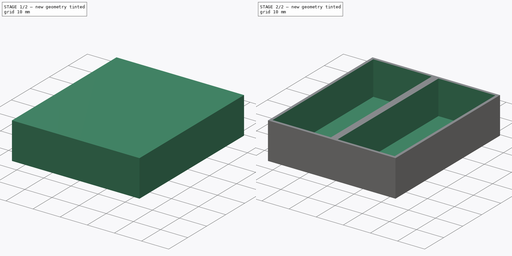
[diagram: build sequence overview — one tinted view per stage of 2, left to right]
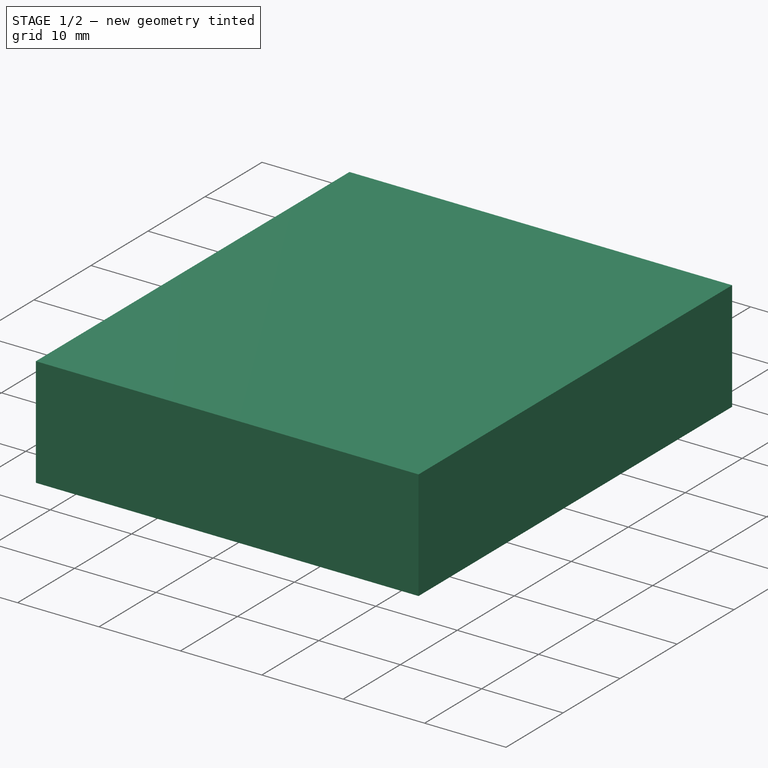
[diagram: stage 1 of 2 — iso view after this stage's code; geometry added in this stage tinted green]
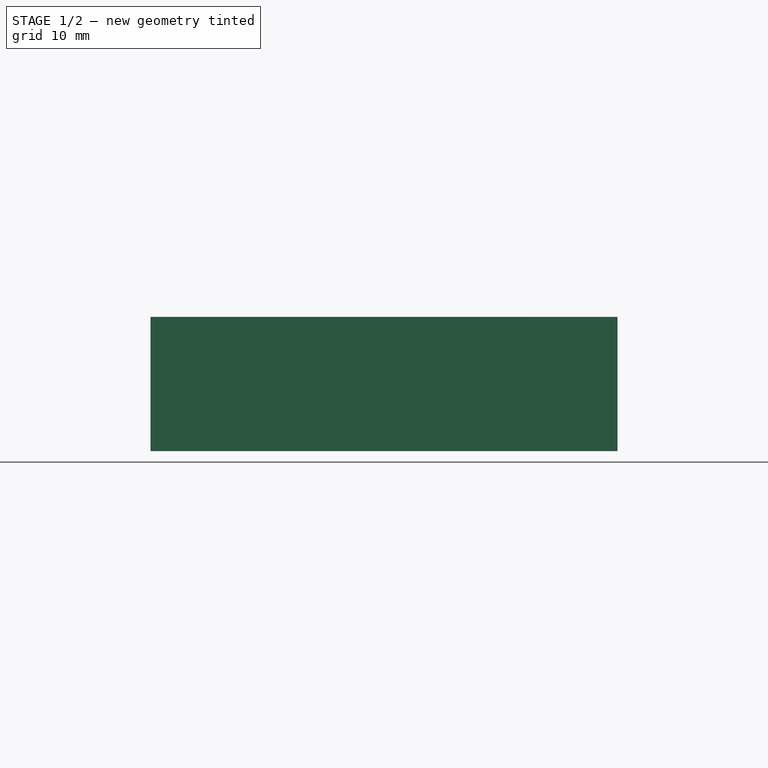
[diagram: stage 1 of 2 — front view after this stage's code; geometry added in this stage tinted green]
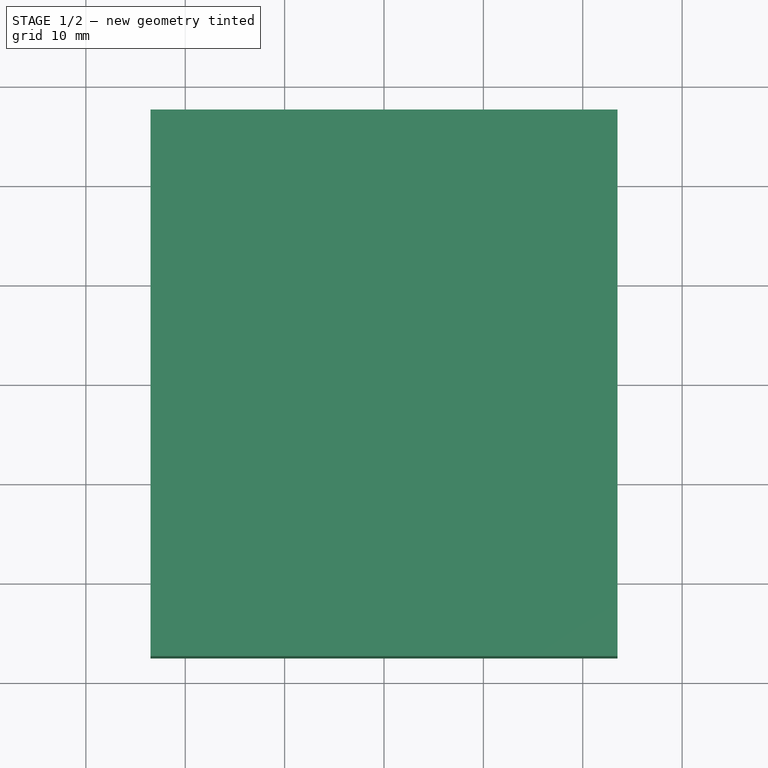
[diagram: stage 1 of 2 — top view after this stage's code; geometry added in this stage tinted green]
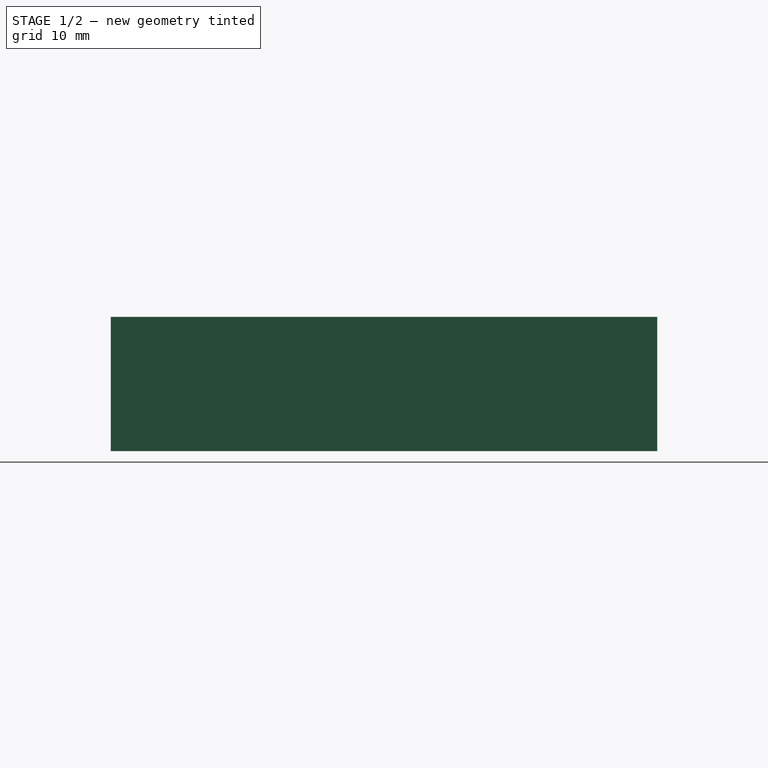
[diagram: stage 1 of 2 — right view after this stage's code; geometry added in this stage tinted green]
FCSTD DOCUMENT  (FreeCAD 0.21R33694 (Git))
Label: l298d
License: All rights reserved
LicenseURL: https://en.wikipedia.org/wiki/All_rights_reserved
objects: Sketcher::SketchObject×2, PartDesign::Pad×1, PartDesign::Pocket×1, PartDesign::Body×1
note: 7 computed .brp shape members not serialized (recipe doc carries the construction recipe); baked Part::Feature solids carry a one-line shape summary decoded from their .brp

FEATURE [Sketcher::SketchObject] Sketch
  FullyConstrained = true
  MapMode = 5
  Support = -> [XY_Plane]
  sketch-geometry (4):
    g0: LineSegment StartX=-23.5 StartY=27.5 StartZ=0 EndX=23.5 EndY=27.5 EndZ=0
    g1: LineSegment StartX=23.5 StartY=27.5 StartZ=0 EndX=23.5 EndY=-27.5 EndZ=0
    g2: LineSegment StartX=23.5 StartY=-27.5 StartZ=0 EndX=-23.5 EndY=-27.5 EndZ=0
    g3: LineSegment StartX=-23.5 StartY=-27.5 StartZ=0 EndX=-23.5 EndY=27.5 EndZ=0
  constraints (11):
    c: Coincident(g0,g1)
    c: Coincident(g1,g2)
    c: Coincident(g2,g3)
    c: Coincident(g3,g0)
    c: Horizontal(g0)
    c: Horizontal(g2)
    c: Vertical(g1)
    c: Vertical(g3)
    c: DistanceX(g0,g0) = 47
    c: DistanceY(g3,g3) = 55
    c: Symmetric(g0,g1,g-1)
FEATURE [PartDesign::Pad] Pad
  Direction = (0,0,1)
  Length = 13.5
  Length2 = 10
  Profile = -> Sketch
  ReferenceAxis = -> Sketch [N_Axis]
  Type = 0
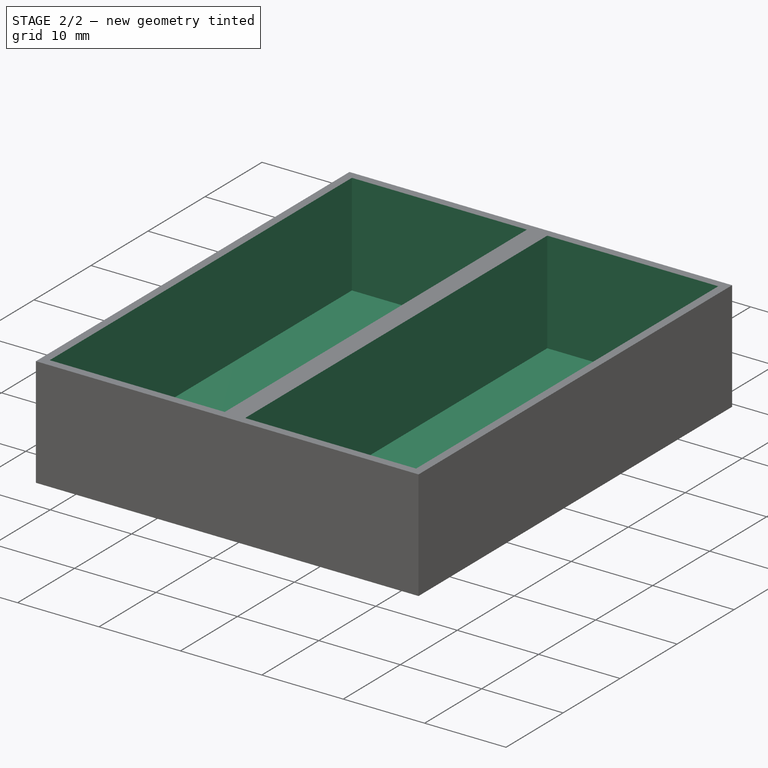
[diagram: stage 2 of 2 — iso view after this stage's code; geometry added in this stage tinted green]
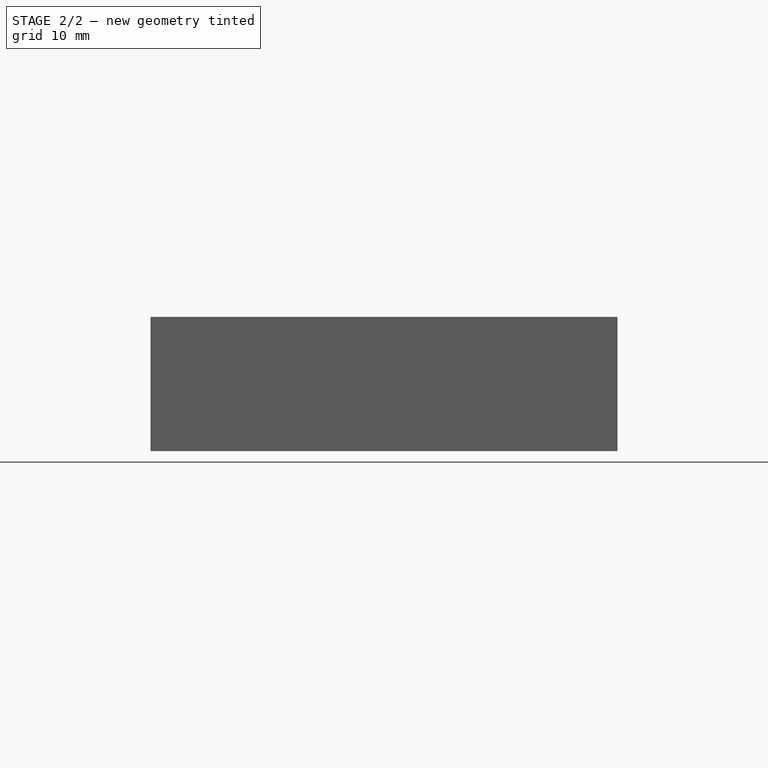
[diagram: stage 2 of 2 — front view after this stage's code; geometry added in this stage tinted green]
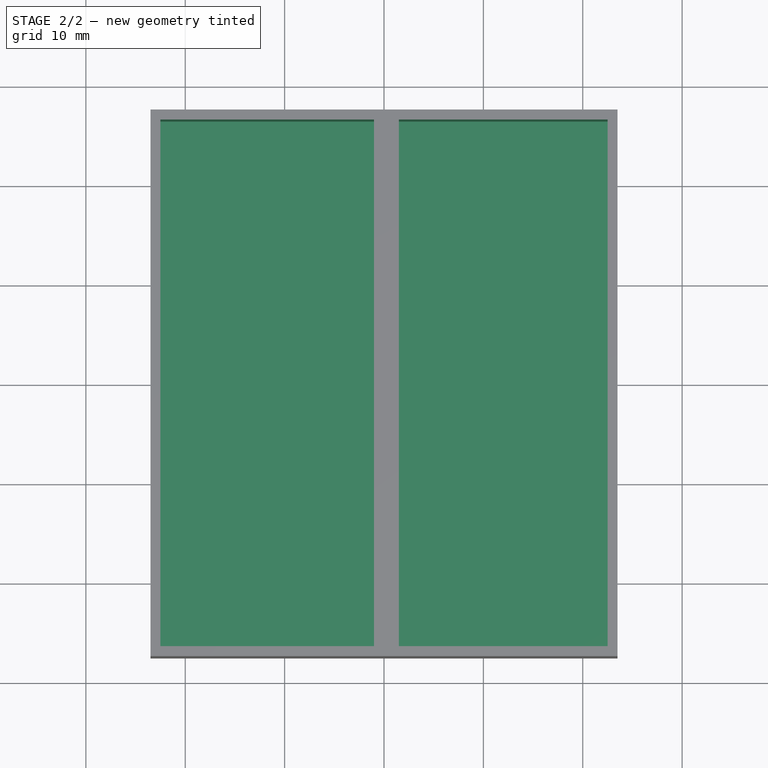
[diagram: stage 2 of 2 — top view after this stage's code; geometry added in this stage tinted green]
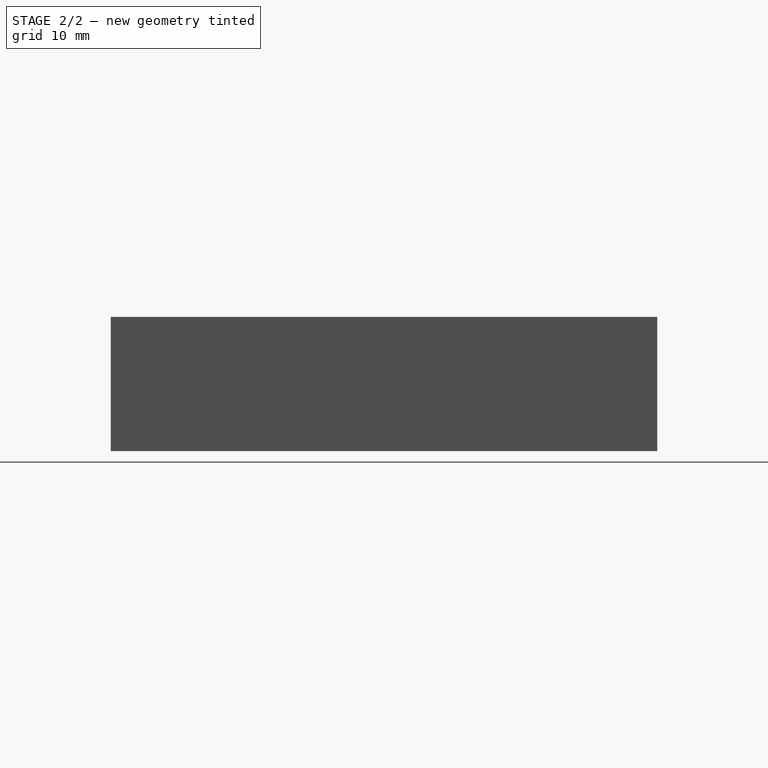
[diagram: stage 2 of 2 — right view after this stage's code; geometry added in this stage tinted green]
FEATURE [Sketcher::SketchObject] Sketch001
  ExternalGeometry = -> [Pad]
  FullyConstrained = true
  MapMode = 5
  Placement = pos=(0,0,13.5) rot=(0,0,1;0rad)
  Support = -> [Pad]
  sketch-geometry (8):
    g0: LineSegment StartX=-22.5 StartY=26.5 StartZ=0 EndX=-1 EndY=26.5 EndZ=0
    g1: LineSegment StartX=-1 StartY=26.5 StartZ=0 EndX=-1 EndY=-26.5 EndZ=0
    g2: LineSegment StartX=-1 StartY=-26.5 StartZ=0 EndX=-22.5 EndY=-26.5 EndZ=0
    g3: LineSegment StartX=-22.5 StartY=-26.5 StartZ=0 EndX=-22.5 EndY=26.5 EndZ=0
    g4: LineSegment StartX=1.5 StartY=26.5 StartZ=0 EndX=22.5 EndY=26.5 EndZ=0
    g5: LineSegment StartX=22.5 StartY=26.5 StartZ=0 EndX=22.5 EndY=-26.5 EndZ=0
    g6: LineSegment StartX=22.5 StartY=-26.5 StartZ=0 EndX=1.5 EndY=-26.5 EndZ=0
    g7: LineSegment StartX=1.5 StartY=-26.5 StartZ=0 EndX=1.5 EndY=26.5 EndZ=0
  constraints (24):
    c: Coincident(g0,g1)
    c: Coincident(g1,g2)
    c: Coincident(g2,g3)
    c: Coincident(g3,g0)
    c: Horizontal(g0)
    c: Horizontal(g2)
    c: Vertical(g1)
    c: Vertical(g3)
    c: DistanceY(g3,g3) = 53
    c: DistanceX(g0,g0) = 21.5
    c: DistanceY(g0,g-4) = 1
    c: Coincident(g4,g5)
    c: Coincident(g5,g6)
    c: Coincident(g6,g7)
    c: Coincident(g7,g4)
    c: Horizontal(g4)
    c: Horizontal(g6)
    c: Vertical(g5)
    c: Vertical(g7)
    c: DistanceX(g4,g4) = 21
    c: DistanceY(g5,g5) = 53
    c: DistanceY(g-3,g6) = 1
    c: DistanceX(g-3,g2) = 1
    c: DistanceX(g4,g-4) = 1
FEATURE [PartDesign::Pocket] Pocket
  BaseFeature = -> Pad
  Direction = (0,0,-1)
  Length = 12.5
  Length2 = 5
  Profile = -> Sketch001
  ReferenceAxis = -> Sketch001 [N_Axis]
  Type = 0
FEATURE [PartDesign::Body] Body
  Group = -> [Sketch,Pad,Sketch001,Pocket]
  Origin = -> Origin
  Tip = -> Pocket
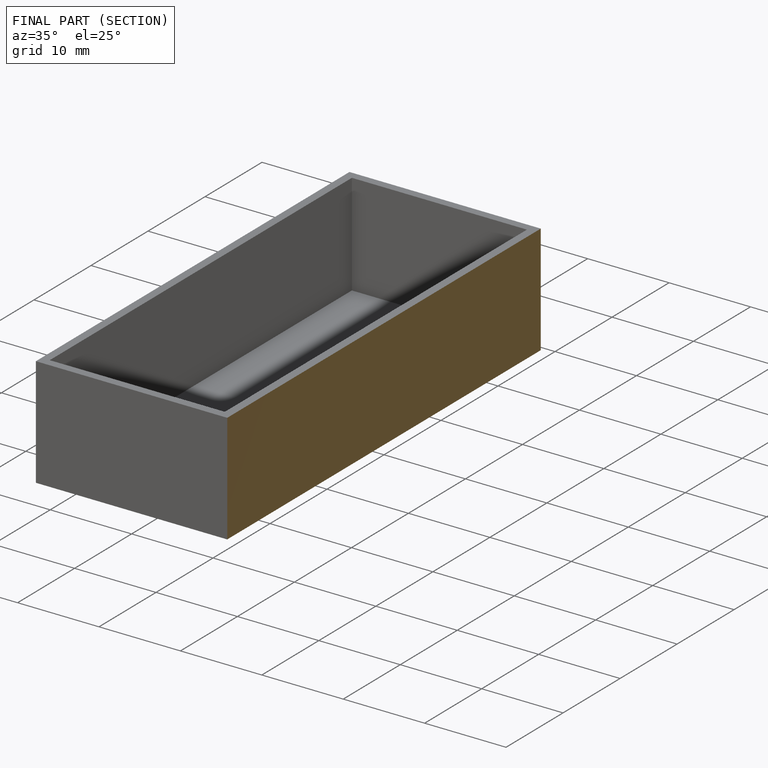
[diagram: finished part — half-section view (interior)]
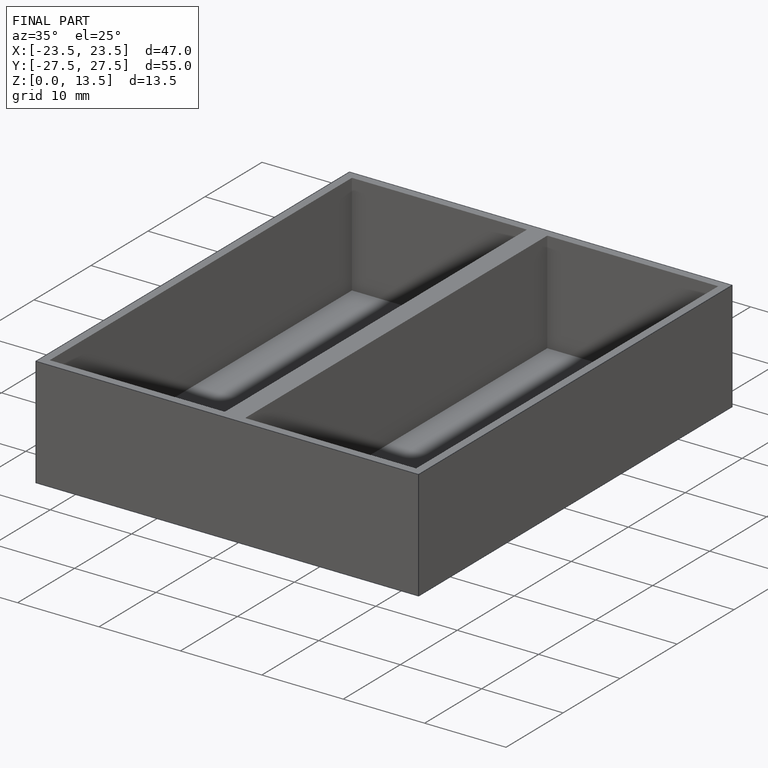
[diagram: finished part — iso view with bounding-box wireframe]
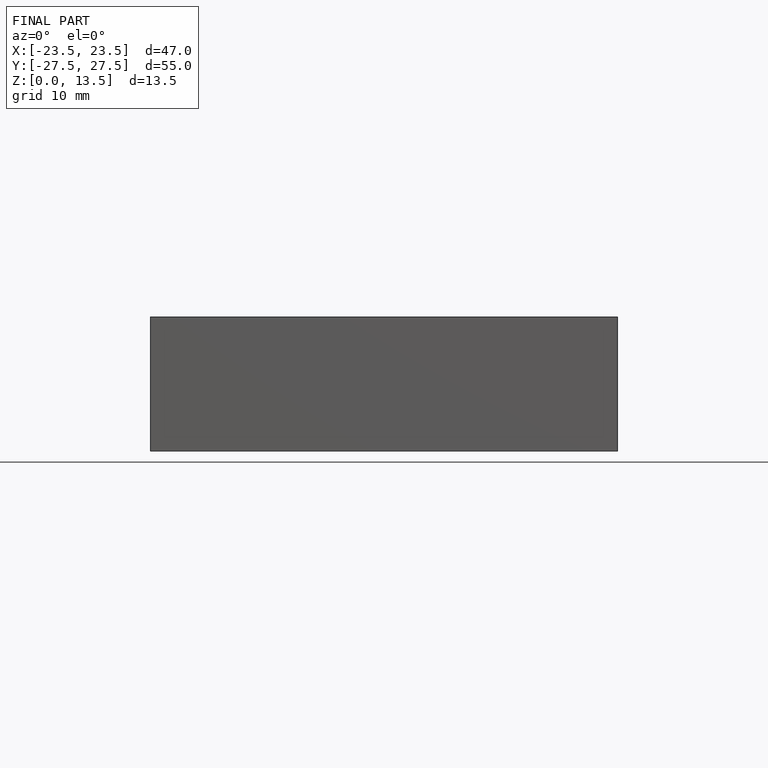
[diagram: finished part — front view with bounding-box wireframe]
